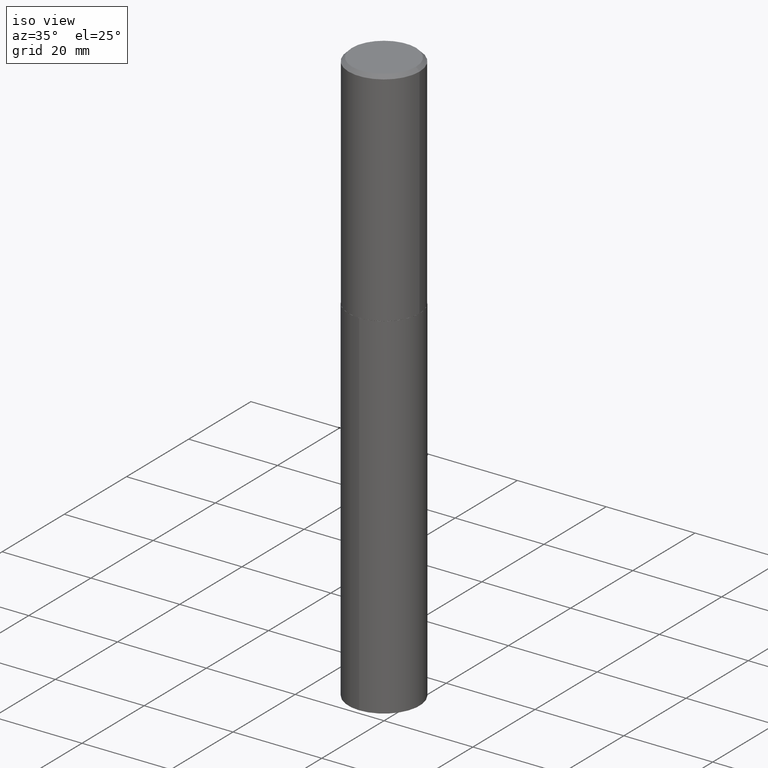
[diagram: clean part render]
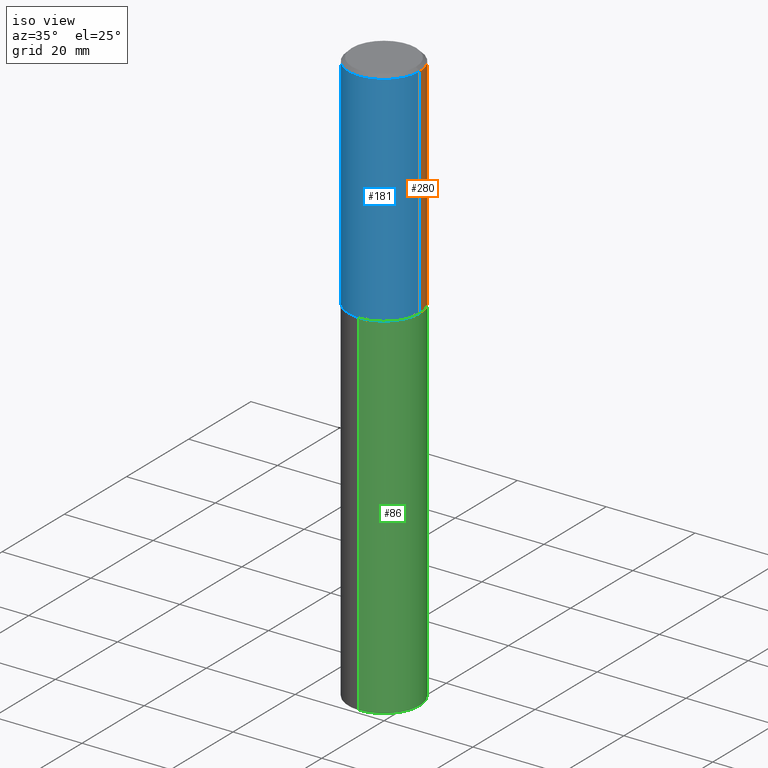
[diagram: same view with three faces highlighted in distinct colors, each labeled with its STEP entity id]
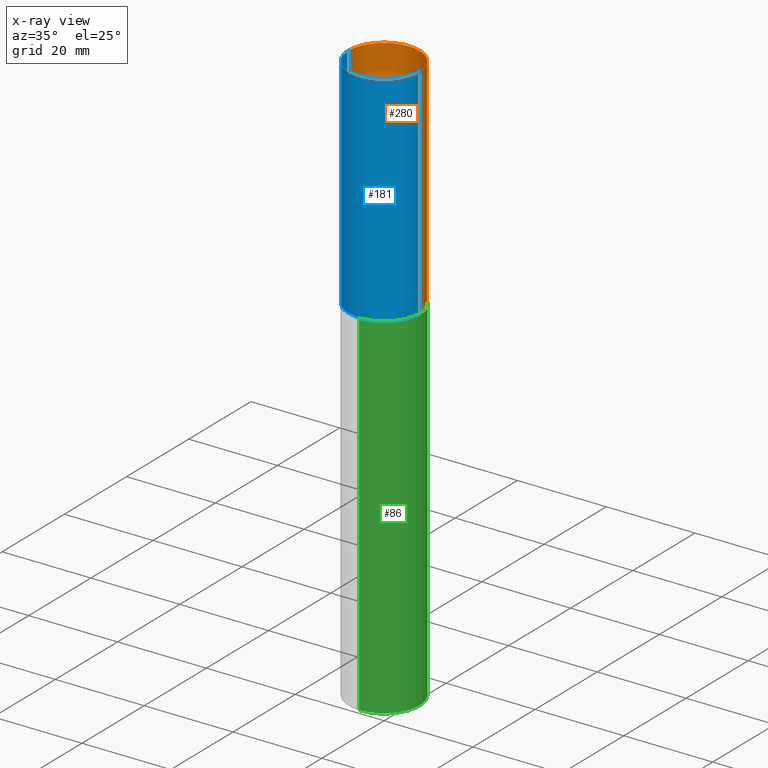
[diagram: x-ray of the same camera — body ghosted, the three highlighted faces saturated]
A machine part, iso view with three faces highlighted in distinct colors.
The next image is the same camera in x-ray (body ghosted, the three faces saturated) — at least one of them is partly hidden behind the body in this view.
Their STEP definitions:

[orange] entity #280 — the highlighted cylindrical surface (partial cylindrical patch) has radius 7.9997 mm, axis along (-0, 0, 1).
#1 = DIRECTION ( 'NONE',  ( -2.445468806185136597E-29, 3.491481338843145583E-15, 1.000000000000000000 ) ) ;
#5 = EDGE_CURVE ( 'NONE', #67, #201, #101, .T. ) ;
#23 = CARTESIAN_POINT ( 'NONE',  ( 0.3149500000000000632, -2.308392887176139760E-15, -0.03125000000000023592 ) ) ;
#30 = CARTESIAN_POINT ( 'NONE',  ( 7.642090019328610544E-31, -1.091087918388491376E-16, -0.03125000000000023592 ) ) ;
#49 = CARTESIAN_POINT ( 'NONE',  ( 0.3149500000000001743, -2.199284095337290660E-15, 1.535751875536930690E-29 ) ) ;
#52 = FACE_OUTER_BOUND ( 'NONE', #109, .T. ) ;
#54 = ORIENTED_EDGE ( 'NONE', *, *, #111, .T. ) ;
#67 = VERTEX_POINT ( 'NONE', #23 ) ;
#74 = EDGE_CURVE ( 'NONE', #172, #382, #276, .T. ) ;
#85 = LINE ( 'NONE', #49, #225 ) ;
#101 = CIRCLE ( 'NONE', #371, 0.3149500000000000632 ) ;
#109 = EDGE_LOOP ( 'NONE', ( #113, #54, #197, #220 ) ) ;
#111 = EDGE_CURVE ( 'NONE', #382, #201, #238, .T. ) ;
#113 = ORIENTED_EDGE ( 'NONE', *, *, #74, .T. ) ;
#123 = DIRECTION ( 'NONE',  ( 1.000000000000000000, -6.982962677686265922E-15, 0.000000000000000000 ) ) ;
#134 = CARTESIAN_POINT ( 'NONE',  ( -0.3149500000000000632, -1.251968538930757395E-15, -0.03125000000000023592 ) ) ;
#145 = DIRECTION ( 'NONE',  ( -2.445468806185136597E-29, 3.491481338843145583E-15, 1.000000000000000000 ) ) ;
#171 = DIRECTION ( 'NONE',  ( 1.000000000000000000, -6.982962677686265922E-15, 4.876176775795935232E-29 ) ) ;
#172 = VERTEX_POINT ( 'NONE', #279 ) ;
#188 = VECTOR ( 'NONE', #363, 39.37007874015748143 ) ;
#197 = ORIENTED_EDGE ( 'NONE', *, *, #5, .F. ) ;
#201 = VERTEX_POINT ( 'NONE', #134 ) ;
#211 = CARTESIAN_POINT ( 'NONE',  ( -0.3149500000000001743, 2.237854346276436774E-15, -1.549218606675783237E-29 ) ) ;
#213 = AXIS2_PLACEMENT_3D ( 'NONE', #264, #268, #123 ) ;
#220 = ORIENTED_EDGE ( 'NONE', *, *, #390, .F. ) ;
#225 = VECTOR ( 'NONE', #381, 39.37007874015748143 ) ;
#238 = LINE ( 'NONE', #211, #188 ) ;
#246 = AXIS2_PLACEMENT_3D ( 'NONE', #284, #145, #171 ) ;
#254 = CYLINDRICAL_SURFACE ( 'NONE', #246, 0.3149500000000001743 ) ;
#255 = CARTESIAN_POINT ( 'NONE',  ( -0.3149500000000001743, -4.632682632299103251E-15, -1.967799999999999327 ) ) ;
#264 = CARTESIAN_POINT ( 'NONE',  ( 4.812193516811110904E-29, -6.870536978575539236E-15, -1.967799999999999327 ) ) ;
#268 = DIRECTION ( 'NONE',  ( -2.445468806185136597E-29, 3.491481338843145583E-15, 1.000000000000000000 ) ) ;
#276 = CIRCLE ( 'NONE', #213, 0.3149500000000001743 ) ;
#279 = CARTESIAN_POINT ( 'NONE',  ( 0.3149500000000001743, -9.069821073912830684E-15, -1.967799999999999327 ) ) ;
#280 = ADVANCED_FACE ( 'NONE', ( #52 ), #254, .T. ) ;
#284 = CARTESIAN_POINT ( 'NONE',  ( 0.000000000000000000, 0.000000000000000000, 0.000000000000000000 ) ) ;
#359 = DIRECTION ( 'NONE',  ( 1.000000000000000000, -6.982962677686266711E-15, 0.000000000000000000 ) ) ;
#363 = DIRECTION ( 'NONE',  ( -2.445468806185136877E-29, 3.491481338843145188E-15, 1.000000000000000000 ) ) ;
#371 = AXIS2_PLACEMENT_3D ( 'NONE', #30, #1, #359 ) ;
#381 = DIRECTION ( 'NONE',  ( -2.445468806185136877E-29, 3.491481338843145188E-15, 1.000000000000000000 ) ) ;
#382 = VERTEX_POINT ( 'NONE', #255 ) ;
#390 = EDGE_CURVE ( 'NONE', #172, #67, #85, .T. ) ;

[blue] entity #181 — the highlighted cylindrical surface (partial cylindrical patch) has radius 7.9997 mm, axis along (-0, 0, 1).
#20 = EDGE_CURVE ( 'NONE', #201, #67, #378, .T. ) ;
#23 = CARTESIAN_POINT ( 'NONE',  ( 0.3149500000000000632, -2.308392887176139760E-15, -0.03125000000000023592 ) ) ;
#35 = DIRECTION ( 'NONE',  ( -2.445468806185136597E-29, 3.491481338843145583E-15, 1.000000000000000000 ) ) ;
#49 = CARTESIAN_POINT ( 'NONE',  ( 0.3149500000000001743, -2.199284095337290660E-15, 1.535751875536930690E-29 ) ) ;
#50 = ORIENTED_EDGE ( 'NONE', *, *, #20, .F. ) ;
#51 = CIRCLE ( 'NONE', #297, 0.3149500000000001743 ) ;
#67 = VERTEX_POINT ( 'NONE', #23 ) ;
#81 = ORIENTED_EDGE ( 'NONE', *, *, #390, .T. ) ;
#85 = LINE ( 'NONE', #49, #225 ) ;
#87 = EDGE_LOOP ( 'NONE', ( #354, #256, #81, #50 ) ) ;
#111 = EDGE_CURVE ( 'NONE', #382, #201, #238, .T. ) ;
#134 = CARTESIAN_POINT ( 'NONE',  ( -0.3149500000000000632, -1.251968538930757395E-15, -0.03125000000000023592 ) ) ;
#143 = AXIS2_PLACEMENT_3D ( 'NONE', #177, #296, #242 ) ;
#172 = VERTEX_POINT ( 'NONE', #279 ) ;
#177 = CARTESIAN_POINT ( 'NONE',  ( 7.642090019328610544E-31, -1.091087918388491376E-16, -0.03125000000000023592 ) ) ;
#181 = ADVANCED_FACE ( 'NONE', ( #215 ), #214, .T. ) ;
#188 = VECTOR ( 'NONE', #363, 39.37007874015748143 ) ;
#201 = VERTEX_POINT ( 'NONE', #134 ) ;
#211 = CARTESIAN_POINT ( 'NONE',  ( -0.3149500000000001743, 2.237854346276436774E-15, -1.549218606675783237E-29 ) ) ;
#214 = CYLINDRICAL_SURFACE ( 'NONE', #369, 0.3149500000000001743 ) ;
#215 = FACE_OUTER_BOUND ( 'NONE', #87, .T. ) ;
#222 = DIRECTION ( 'NONE',  ( 1.000000000000000000, -6.982962677686265922E-15, 0.000000000000000000 ) ) ;
#225 = VECTOR ( 'NONE', #381, 39.37007874015748143 ) ;
#238 = LINE ( 'NONE', #211, #188 ) ;
#242 = DIRECTION ( 'NONE',  ( 1.000000000000000000, -6.982962677686266711E-15, 0.000000000000000000 ) ) ;
#252 = DIRECTION ( 'NONE',  ( -2.445468806185136597E-29, 3.491481338843145583E-15, 1.000000000000000000 ) ) ;
#255 = CARTESIAN_POINT ( 'NONE',  ( -0.3149500000000001743, -4.632682632299103251E-15, -1.967799999999999327 ) ) ;
#256 = ORIENTED_EDGE ( 'NONE', *, *, #274, .T. ) ;
#273 = CARTESIAN_POINT ( 'NONE',  ( 0.000000000000000000, 0.000000000000000000, 0.000000000000000000 ) ) ;
#274 = EDGE_CURVE ( 'NONE', #382, #172, #51, .T. ) ;
#279 = CARTESIAN_POINT ( 'NONE',  ( 0.3149500000000001743, -9.069821073912830684E-15, -1.967799999999999327 ) ) ;
#296 = DIRECTION ( 'NONE',  ( -2.445468806185136597E-29, 3.491481338843145583E-15, 1.000000000000000000 ) ) ;
#297 = AXIS2_PLACEMENT_3D ( 'NONE', #373, #252, #222 ) ;
#341 = DIRECTION ( 'NONE',  ( 1.000000000000000000, -6.982962677686265922E-15, 4.876176775795935232E-29 ) ) ;
#354 = ORIENTED_EDGE ( 'NONE', *, *, #111, .F. ) ;
#363 = DIRECTION ( 'NONE',  ( -2.445468806185136877E-29, 3.491481338843145188E-15, 1.000000000000000000 ) ) ;
#369 = AXIS2_PLACEMENT_3D ( 'NONE', #273, #35, #341 ) ;
#373 = CARTESIAN_POINT ( 'NONE',  ( 4.812193516811110904E-29, -6.870536978575539236E-15, -1.967799999999999327 ) ) ;
#378 = CIRCLE ( 'NONE', #143, 0.3149500000000000632 ) ;
#381 = DIRECTION ( 'NONE',  ( -2.445468806185136877E-29, 3.491481338843145188E-15, 1.000000000000000000 ) ) ;
#382 = VERTEX_POINT ( 'NONE', #255 ) ;
#390 = EDGE_CURVE ( 'NONE', #172, #67, #85, .T. ) ;

[green] entity #86 — the highlighted cylindrical surface (partial cylindrical patch) has radius 7.9997 mm, axis along (-0, 0, 1).
#10 = AXIS2_PLACEMENT_3D ( 'NONE', #294, #244, #154 ) ;
#36 = CARTESIAN_POINT ( 'NONE',  ( -2.199284095337241356E-15, -0.3149500000000068911, -1.968299999999998162 ) ) ;
#43 = VECTOR ( 'NONE', #148, 39.37007874015748143 ) ;
#68 = VERTEX_POINT ( 'NONE', #151 ) ;
#73 = LINE ( 'NONE', #36, #289 ) ;
#79 = DIRECTION ( 'NONE',  ( -6.982962677686265922E-15, -1.000000000000000000, 3.469564049740292770E-15 ) ) ;
#83 = CIRCLE ( 'NONE', #298, 0.3149500000000000077 ) ;
#86 = ADVANCED_FACE ( 'NONE', ( #322 ), #174, .T. ) ;
#93 = CARTESIAN_POINT ( 'NONE',  ( -2.199284095337164048E-15, -0.3149500000000177713, -5.111937895705072954 ) ) ;
#99 = LINE ( 'NONE', #125, #43 ) ;
#103 = EDGE_CURVE ( 'NONE', #141, #350, #99, .T. ) ;
#115 = VERTEX_POINT ( 'NONE', #93 ) ;
#125 = CARTESIAN_POINT ( 'NONE',  ( 2.237854346276483316E-15, 0.3149499999999931243, -1.968300000000000383 ) ) ;
#130 = CARTESIAN_POINT ( 'NONE',  ( 2.237854346276560230E-15, 0.3149499999999821886, -5.111937895705075618 ) ) ;
#137 = AXIS2_PLACEMENT_3D ( 'NONE', #257, #165, #219 ) ;
#141 = VERTEX_POINT ( 'NONE', #130 ) ;
#148 = DIRECTION ( 'NONE',  ( -2.444819801250085822E-29, 3.492410750849204966E-15, 1.000000000000000000 ) ) ;
#151 = CARTESIAN_POINT ( 'NONE',  ( -2.199284095337241356E-15, -0.3149500000000068911, -1.968299999999998162 ) ) ;
#154 = DIRECTION ( 'NONE',  ( -6.982962677686265922E-15, -1.000000000000000000, 3.469564049740292770E-15 ) ) ;
#165 = DIRECTION ( 'NONE',  ( -2.444819801250086102E-29, 3.492410750849204966E-15, 1.000000000000000000 ) ) ;
#174 = CYLINDRICAL_SURFACE ( 'NONE', #10, 0.3149500000000000077 ) ;
#184 = ORIENTED_EDGE ( 'NONE', *, *, #247, .F. ) ;
#196 = CARTESIAN_POINT ( 'NONE',  ( 4.813416251214202584E-29, -6.872282719244960739E-15, -1.968299999999999272 ) ) ;
#199 = CARTESIAN_POINT ( 'NONE',  ( 2.237854346276560625E-15, 0.3149499999999931243, -1.968300000000000383 ) ) ;
#219 = DIRECTION ( 'NONE',  ( -6.982962677686265922E-15, -1.000000000000000000, 3.469564049740292770E-15 ) ) ;
#229 = ORIENTED_EDGE ( 'NONE', *, *, #333, .F. ) ;
#244 = DIRECTION ( 'NONE',  ( -2.444819801250086102E-29, 3.492410750849204966E-15, 1.000000000000000000 ) ) ;
#247 = EDGE_CURVE ( 'NONE', #115, #68, #73, .T. ) ;
#248 = DIRECTION ( 'NONE',  ( -2.444819801250085822E-29, 3.492410750849204966E-15, 1.000000000000000000 ) ) ;
#257 = CARTESIAN_POINT ( 'NONE',  ( 1.249904442659412595E-28, -1.785115750298233678E-14, -5.111937895705073842 ) ) ;
#272 = EDGE_LOOP ( 'NONE', ( #380, #291, #229, #184 ) ) ;
#289 = VECTOR ( 'NONE', #248, 39.37007874015748143 ) ;
#291 = ORIENTED_EDGE ( 'NONE', *, *, #103, .T. ) ;
#294 = CARTESIAN_POINT ( 'NONE',  ( 4.813416251214202584E-29, -6.872282719244960739E-15, -1.968299999999999272 ) ) ;
#298 = AXIS2_PLACEMENT_3D ( 'NONE', #196, #374, #79 ) ;
#322 = FACE_OUTER_BOUND ( 'NONE', #272, .T. ) ;
#333 = EDGE_CURVE ( 'NONE', #68, #350, #83, .T. ) ;
#344 = EDGE_CURVE ( 'NONE', #115, #141, #349, .T. ) ;
#349 = CIRCLE ( 'NONE', #137, 0.3149500000000000077 ) ;
#350 = VERTEX_POINT ( 'NONE', #199 ) ;
#374 = DIRECTION ( 'NONE',  ( -2.444819801250086102E-29, 3.492410750849204966E-15, 1.000000000000000000 ) ) ;
#380 = ORIENTED_EDGE ( 'NONE', *, *, #344, .T. ) ;